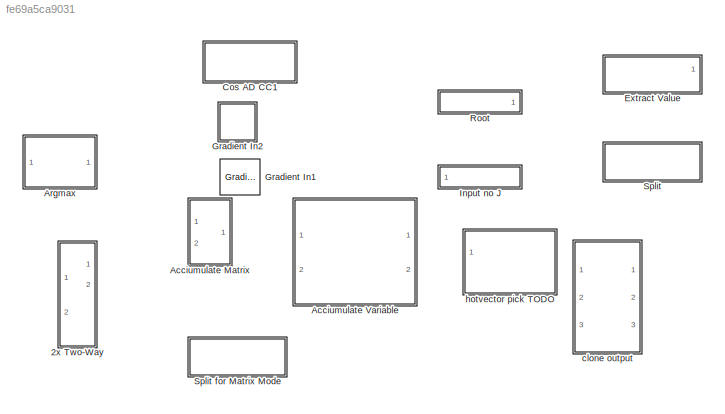
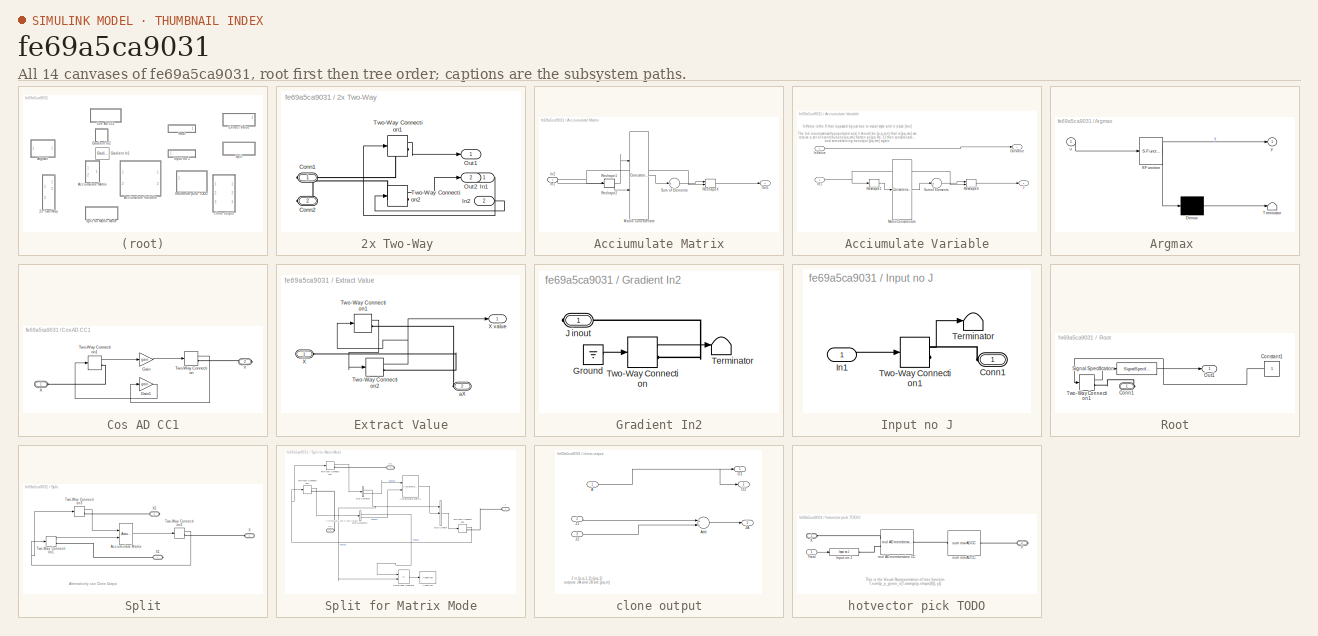
[diagram: thumbnail index - all 14 canvases of the model, root first then tree order]
MODEL slx_fe69a5ca9031
KIND library
CONFIG AbsTol = auto
CONFIG EnableMultiTasking = off
CONFIG FixedStep = auto
CONFIG MaxStep = auto
CONFIG MinStep = auto
CONFIG RelTol = 1e-3
CONFIG SampleTimeConstraint = Unconstrained
CONFIG Solver = VariableStepAuto
CONFIG SolverName = VariableStepAuto
CONFIG StartTime = 0.0
CONFIG StopTime = 10.0
BLOCK [SubSystem] 2x Two-Way 
  Ports = [2, 2, 0, 0, 0, 0, 2]
  RequestExecContextInheritance = off
  Variant = off
BLOCK [PMIOPort] 2x Two-Way /Conn1
  Port = 1
  Side = Right
BLOCK [PMIOPort] 2x Two-Way /Conn2
  Port = 2
  Side = Right
BLOCK [Inport] 2x Two-Way /In1
  IconDisplay = Port number
BLOCK [Inport] 2x Two-Way /In2
  IconDisplay = Port number
  Port = 2
BLOCK [Outport] 2x Two-Way /Out1
  IconDisplay = Port number
BLOCK [Outport] 2x Two-Way /Out2
  IconDisplay = Port number
  Port = 2
BLOCK [TwoWayConnection] 2x Two-Way /Two-Way Connection1
  Ports = [1, 1, 0, 0, 0, 0, 1]
BLOCK [TwoWayConnection] 2x Two-Way /Two-Way Connection2
  Ports = [1, 1, 0, 0, 0, 0, 1]
BLOCK [SubSystem] Acciumulate Matrix
  Ports = [2, 1]
  RequestExecContextInheritance = off
  Variant = off
BLOCK [Inport] Acciumulate Matrix/In1
  IconDisplay = Port number
BLOCK [Inport] Acciumulate Matrix/In2
  IconDisplay = Port number
  Port = 2
BLOCK [Concatenate] Acciumulate Matrix/Matrix Concatenate
  ConcatenateDimension = 2
  Mode = Multidimensional array
  Ports = [2, 1]
BLOCK [Outport] Acciumulate Matrix/Out1
  IconDisplay = Port number
BLOCK [Reshape] Acciumulate Matrix/Reshape1
  Ports = [1, 1]
BLOCK [Reshape] Acciumulate Matrix/Reshape2
  Ports = [1, 1]
BLOCK [Reshape] Acciumulate Matrix/ReshapeX
  OutputDimensionality = Derive from reference input port
  Ports = [2, 1]
BLOCK [Sum] Acciumulate Matrix/Sum of Elements
  CollapseDim = 2
  CollapseMode = Specified dimension
  InputSameDT = off
  Inputs = +
  OutDataTypeStr = Inherit: Inherit via internal rule
  Ports = [1, 1]
  SaturateOnIntegerOverflow = off
BLOCK [SubSystem] Acciumulate Variable
  Ports = [2, 2]
  RequestExecContextInheritance = off
  Variant = off
BLOCK [Inport] Acciumulate Variable/In1
  IconDisplay = Port number
  Port = 2
BLOCK [Inport] Acciumulate Variable/InValue
  IconDisplay = Port number
BLOCK [Outport] Acciumulate Variable/J
  IconDisplay = Port number
  Port = 2
BLOCK [Concatenate] Acciumulate Variable/Matrix Concatenate
  ConcatenateDimension = 2
  Mode = Multidimensional array
  NumInputs = 1
  Ports = [1, 1]
BLOCK [Outport] Acciumulate Variable/OutValue
  IconDisplay = Port number
BLOCK [Reshape] Acciumulate Variable/Reshape1
  Ports = [1, 1]
BLOCK [Reshape] Acciumulate Variable/ReshapeX
  OutputDimensionality = Derive from reference input port
  Ports = [2, 1]
BLOCK [Sum] Acciumulate Variable/Sum of Elements
  CollapseDim = 2
  CollapseMode = Specified dimension
  InputSameDT = off
  Inputs = +
  OutDataTypeStr = Inherit: Inherit via internal rule
  Ports = [1, 1]
  SaturateOnIntegerOverflow = off
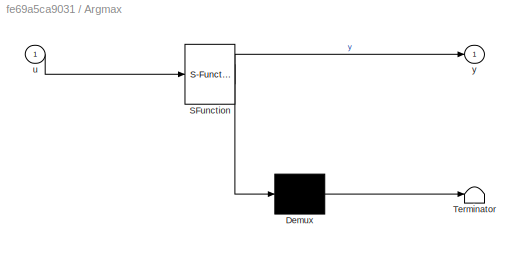
BLOCK [SubSystem] Argmax 
  ErrorFcn = Stateflow.Translate.translate
  PermitHierarchicalResolution = ExplicitOnly
  Ports = [1, 1]
  RequestExecContextInheritance = off
  SFBlockType = MATLAB Function
  TreatAsAtomicUnit = on
  Variant = off
BLOCK [Demux] Argmax / Demux 
  Outputs = 1
  Ports = [1, 1]
BLOCK [S-Function] Argmax / SFunction 
  EnableBusSupport = off
  FunctionName = sf_sfun
  Parameters = dim
  PortCounts = [1 2]
  Ports = [1, 2]
  SFcnIsStateOwnerBlock = off
  SFunctionDeploymentMode = off
  Tag = Stateflow S-Function ad_common 3
BLOCK [Terminator] Argmax / Terminator 
BLOCK [Inport] Argmax /u
  IconDisplay = Port number
BLOCK [Outport] Argmax /y
  IconDisplay = Port number
BLOCK [SubSystem] Cos AD CC1
  Ports = [0, 0, 0, 0, 0, 1, 1]
  RequestExecContextInheritance = off
  Variant = off
BLOCK [Gain] Cos AD CC1/Gain
  Gain = gain
  OutDataTypeStr = Inherit: Inherit via internal rule
  ParamDataTypeStr = Inherit: Inherit via internal rule
  SaturateOnIntegerOverflow = off
BLOCK [Gain] Cos AD CC1/Gain1
  Gain = gain
  OutDataTypeStr = Inherit: Inherit via internal rule
  ParamDataTypeStr = Inherit: Inherit via internal rule
  SaturateOnIntegerOverflow = off
BLOCK [TwoWayConnection] Cos AD CC1/Two-Way Connection
  Ports = [1, 1, 0, 0, 0, 0, 1]
BLOCK [TwoWayConnection] Cos AD CC1/Two-Way Connection1
  Ports = [1, 1, 0, 0, 0, 0, 1]
BLOCK [PMIOPort] Cos AD CC1/X
  Port = 1
  Side = Left
BLOCK [PMIOPort] Cos AD CC1/Y
  Port = 2
  Side = Right
BLOCK [SubSystem] Extract Value
  Ports = [0, 1, 0, 0, 0, 1, 1]
  RequestExecContextInheritance = off
  Variant = off
BLOCK [TwoWayConnection] Extract Value/Two-Way Connection1
  Ports = [1, 1, 0, 0, 0, 0, 1]
BLOCK [TwoWayConnection] Extract Value/Two-Way Connection2
  Ports = [1, 1, 0, 0, 0, 0, 1]
BLOCK [PMIOPort] Extract Value/X
  Port = 1
  Side = Left
BLOCK [Outport] Extract Value/X value
  IconDisplay = Port number
BLOCK [PMIOPort] Extract Value/aX
  Port = 2
  Side = Right
BLOCK [Reference] Gradient In1  REF=ad_common/Gradient In2  (lib defined in slx_fe69a5ca9031)
  Ports = [0, 0, 0, 0, 0, 0, 1]
  SourceBlock = ad_common/Gradient In2
BLOCK [SubSystem] Gradient In2
  Ports = [0, 0, 0, 0, 0, 0, 1]
  RequestExecContextInheritance = off
  ShowPortLabels = none
  Variant = off
BLOCK [Ground] Gradient In2/Ground
BLOCK [PMIOPort] Gradient In2/J inout
  Port = 1
  Side = Right
BLOCK [Terminator] Gradient In2/Terminator
BLOCK [TwoWayConnection] Gradient In2/Two-Way Connection
  Ports = [1, 1, 0, 0, 0, 0, 1]
BLOCK [SubSystem] Input no J
  Ports = [1, 0, 0, 0, 0, 0, 1]
  RequestExecContextInheritance = off
  Variant = off
BLOCK [PMIOPort] Input no J/Conn1
  Port = 1
  Side = Right
BLOCK [Inport] Input no J/In1
  IconDisplay = Port number
BLOCK [Terminator] Input no J/Terminator
BLOCK [TwoWayConnection] Input no J/Two-Way Connection1
  Ports = [1, 1, 0, 0, 0, 0, 1]
BLOCK [SubSystem] Root
  Ports = [0, 1, 0, 0, 0, 1]
  RequestExecContextInheritance = off
  Variant = off
BLOCK [PMIOPort] Root/Conn1
  Port = 1
  Side = Left
BLOCK [Constant] Root/Constant1
BLOCK [Outport] Root/Out1
  IconDisplay = Port number
BLOCK [SignalSpecification] Root/Signal Specification
  Dimensions = 1
  VarSizeSig = No
BLOCK [TwoWayConnection] Root/Two-Way Connection1
  Ports = [1, 1, 0, 0, 0, 0, 1]
BLOCK [SubSystem] Split
  Ports = [0, 0, 0, 0, 0, 1, 2]
  RequestExecContextInheritance = off
  Variant = off
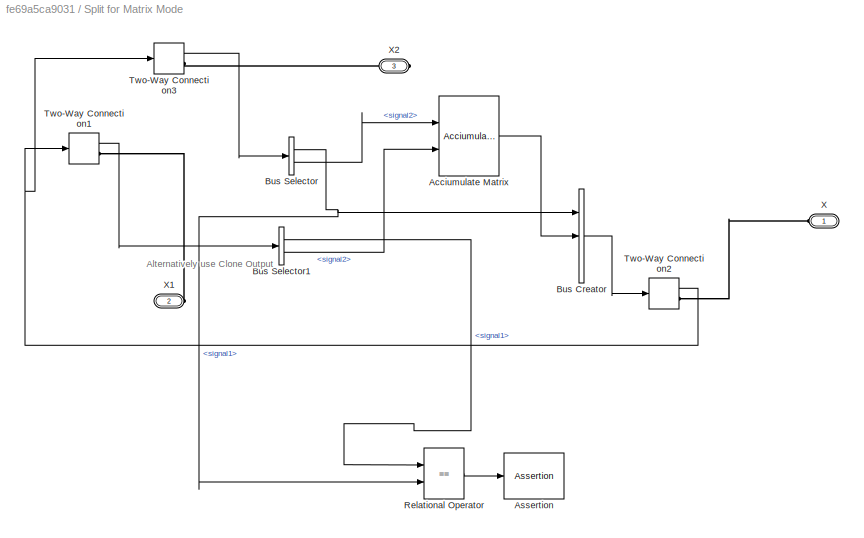
BLOCK [SubSystem] Split for Matrix Mode
  Ports = [0, 0, 0, 0, 0, 1, 2]
  RequestExecContextInheritance = off
  Variant = off
BLOCK [Reference] Split for Matrix Mode/Acciumulate Matrix  REF=autodiff/Common/Acciumulate Matrix  (lib defined in slx_73a817ef6e8b)
  Ports = [2, 1]
  SourceBlock = autodiff/Common/Acciumulate Matrix
  SourceProductName = AutoDiff
BLOCK [Assertion] Split for Matrix Mode/Assertion
BLOCK [BusCreator] Split for Matrix Mode/Bus Creator
  DisplayOption = bar
  InheritFromInputs = on
  Inputs = 3
  Ports = [3, 1]
BLOCK [BusSelector] Split for Matrix Mode/Bus Selector
  OutputAsBus = off
  OutputSignals = signal1,signal2
  Ports = [1, 2]
BLOCK [BusSelector] Split for Matrix Mode/Bus Selector1
  OutputAsBus = off
  OutputSignals = signal1,signal2
  Ports = [1, 2]
BLOCK [RelationalOperator] Split for Matrix Mode/Relational Operator
  InputSameDT = off
  Operator = ==
  OutDataTypeStr = boolean
  Ports = [2, 1]
  RndMeth = Simplest
BLOCK [TwoWayConnection] Split for Matrix Mode/Two-Way Connection1
  Ports = [1, 1, 0, 0, 0, 0, 1]
BLOCK [TwoWayConnection] Split for Matrix Mode/Two-Way Connection2
  Ports = [1, 1, 0, 0, 0, 0, 1]
BLOCK [TwoWayConnection] Split for Matrix Mode/Two-Way Connection3
  Ports = [1, 1, 0, 0, 0, 0, 1]
BLOCK [PMIOPort] Split for Matrix Mode/X
  Port = 1
  Side = Left
BLOCK [PMIOPort] Split for Matrix Mode/X1
  Port = 2
  Side = Right
BLOCK [PMIOPort] Split for Matrix Mode/X2
  Port = 3
  Side = Right
BLOCK [Reference] Split/Acciumulate Matrix  REF=autodiff/Common/Acciumulate Matrix  (lib defined in slx_73a817ef6e8b)
  Ports = [2, 1]
  SourceBlock = autodiff/Common/Acciumulate Matrix
  SourceProductName = AutoDiff
BLOCK [TwoWayConnection] Split/Two-Way Connection1
  Ports = [1, 1, 0, 0, 0, 0, 1]
BLOCK [TwoWayConnection] Split/Two-Way Connection2
  Ports = [1, 1, 0, 0, 0, 0, 1]
BLOCK [TwoWayConnection] Split/Two-Way Connection3
  Ports = [1, 1, 0, 0, 0, 0, 1]
BLOCK [PMIOPort] Split/X
  Port = 1
  Side = Left
BLOCK [PMIOPort] Split/X1
  Port = 2
  Side = Right
BLOCK [PMIOPort] Split/X2
  Port = 3
  Side = Right
BLOCK [SubSystem] clone output
  Ports = [3, 3]
  RequestExecContextInheritance = off
  Variant = off
BLOCK [Inport] clone output/A
  IconDisplay = Port number
BLOCK [Sum] clone output/Add
  InputSameDT = off
  OutDataTypeStr = Inherit: Inherit via internal rule
  Ports = [2, 1]
  SaturateOnIntegerOverflow = off
BLOCK [Inport] clone output/J1
  IconDisplay = Port number
  Port = 2
BLOCK [Inport] clone output/J2 
  IconDisplay = Port number
  Port = 3
BLOCK [Outport] clone output/JA
  IconDisplay = Port number
  Port = 3
BLOCK [Outport] clone output/O1
  IconDisplay = Port number
BLOCK [Outport] clone output/O2
  IconDisplay = Port number
  Port = 2
BLOCK [SubSystem] hotvector pick TODO
  Ports = [1, 0, 0, 0, 0, 1, 1]
  RequestExecContextInheritance = off
  Variant = off
BLOCK [Reference] hotvector pick TODO/Input no J  REF=autodiff/Input no J  (lib defined in slx_73a817ef6e8b)
  Ports = [1, 0, 0, 0, 0, 0, 1]
  SourceBlock = autodiff/Input no J
  SourceProductName = AutoDiff
BLOCK [PMIOPort] hotvector pick TODO/X
  Port = 1
  Side = Left
BLOCK [PMIOPort] hotvector pick TODO/Y
  Port = 2
  Side = Right
BLOCK [Inport] hotvector pick TODO/Yreal
  IconDisplay = Port number
BLOCK [Reference] hotvector pick TODO/mul AD memberwise CC  REF=autodiff/mul AD memberwise CC  (lib defined in slx_73a817ef6e8b)
  Ports = [0, 0, 0, 0, 0, 2, 1]
  SourceBlock = autodiff/mul AD memberwise CC
  SourceProductName = AutoDiff
  SourceType = SubSystem
BLOCK [Reference] hotvector pick TODO/sum row AD CC  REF=autodiff/sum row AD CC  (lib defined in slx_73a817ef6e8b)
  Ports = [0, 0, 0, 0, 0, 1, 1]
  SourceBlock = autodiff/sum row AD CC
  SourceProductName = AutoDiff
ANNOTATION Acciumulate Variable: InValue is the X that is passed by just due to visual style and it is size [m,n] The In# is automatically populated and it should be [p,q,m,n] that is [pq,mn] we receive a set of k contributions [pq,mn] flatten as [pq mn, 1] then concatenate to [pq mn,k] and sum obtaining as output [pq,mn] again
ANNOTATION Split: Alternatively use Clone Output
ANNOTATION Split for Matrix Mode: Alternatively use Clone Output
ANNOTATION clone output: J is [p,q,1,1]=[pq,1] outputs JA and JB are [pq,m]
ANNOTATION hotvector pick TODO: This is the Visual Representation of loss function T . sum(p_y_given_x[T . arange(y . shape[ 0 ]), y])
LINE 2x Two-Way /In1:1 -> 2x Two-Way /Two-Way Connection1:1
LINE 2x Two-Way /In2:1 -> 2x Two-Way /Two-Way Connection2:1
LINE 2x Two-Way /Two-Way Connection1:1 -> 2x Two-Way /Out1:1
LINE 2x Two-Way /Two-Way Connection2:1 -> 2x Two-Way /Out2:1
NET Acciumulate Matrix/In1:1 -> Acciumulate Matrix/Reshape1:1, Acciumulate Matrix/ReshapeX:2
LINE Acciumulate Matrix/In2:1 -> Acciumulate Matrix/Reshape2:1
LINE Acciumulate Matrix/Matrix Concatenate:1 -> Acciumulate Matrix/Sum of Elements:1
LINE Acciumulate Matrix/Reshape1:1 -> Acciumulate Matrix/Matrix Concatenate:1
LINE Acciumulate Matrix/Reshape2:1 -> Acciumulate Matrix/Matrix Concatenate:2
LINE Acciumulate Matrix/ReshapeX:1 -> Acciumulate Matrix/Out1:1
LINE Acciumulate Matrix/Sum of Elements:1 -> Acciumulate Matrix/ReshapeX:1
NET Acciumulate Variable/In1:1 -> Acciumulate Variable/Reshape1:1, Acciumulate Variable/ReshapeX:2
LINE Acciumulate Variable/InValue:1 -> Acciumulate Variable/OutValue:1
LINE Acciumulate Variable/Matrix Concatenate:1 -> Acciumulate Variable/Sum of Elements:1
LINE Acciumulate Variable/Reshape1:1 -> Acciumulate Variable/Matrix Concatenate:1
LINE Acciumulate Variable/ReshapeX:1 -> Acciumulate Variable/J:1
LINE Acciumulate Variable/Sum of Elements:1 -> Acciumulate Variable/ReshapeX:1
LINE Cos AD CC1/Gain1:1 -> Cos AD CC1/Two-Way Connection1:1
LINE Cos AD CC1/Gain:1 -> Cos AD CC1/Two-Way Connection:1
LINE Cos AD CC1/Two-Way Connection1:1 -> Cos AD CC1/Gain:1
LINE Cos AD CC1/Two-Way Connection:1 -> Cos AD CC1/Gain1:1
LINE Extract Value/Two-Way Connection1:1 -> Extract Value/Two-Way Connection2:1
NET Extract Value/Two-Way Connection2:1 -> Extract Value/Two-Way Connection1:1, Extract Value/X value:1
LINE Gradient In2/Ground:1 -> Gradient In2/Two-Way Connection:1
LINE Gradient In2/Two-Way Connection:1 -> Gradient In2/Terminator:1
LINE Input no J/In1:1 -> Input no J/Two-Way Connection1:1
LINE Input no J/Two-Way Connection1:1 -> Input no J/Terminator:1
LINE Root/Constant1:1 -> Root/Two-Way Connection1:1
LINE Root/Signal Specification:1 -> Root/Out1:1
LINE Root/Two-Way Connection1:1 -> Root/Signal Specification:1
LINE Split for Matrix Mode/Acciumulate Matrix:1 -> Split for Matrix Mode/Bus Creator:2
LINE Split for Matrix Mode/Bus Creator:1 -> Split for Matrix Mode/Two-Way Connection2:1
LINE Split for Matrix Mode/Bus Selector1:1 -> Split for Matrix Mode/Relational Operator:1
LINE Split for Matrix Mode/Bus Selector1:2 -> Split for Matrix Mode/Acciumulate Matrix:2
NET Split for Matrix Mode/Bus Selector:1 -> Split for Matrix Mode/Bus Creator:1, Split for Matrix Mode/Relational Operator:2
LINE Split for Matrix Mode/Bus Selector:2 -> Split for Matrix Mode/Acciumulate Matrix:1
LINE Split for Matrix Mode/Relational Operator:1 -> Split for Matrix Mode/Assertion:1
LINE Split for Matrix Mode/Two-Way Connection1:1 -> Split for Matrix Mode/Bus Selector1:1
NET Split for Matrix Mode/Two-Way Connection2:1 -> Split for Matrix Mode/Two-Way Connection1:1, Split for Matrix Mode/Two-Way Connection3:1
LINE Split for Matrix Mode/Two-Way Connection3:1 -> Split for Matrix Mode/Bus Selector:1
LINE Split/Acciumulate Matrix:1 -> Split/Two-Way Connection2:1
LINE Split/Two-Way Connection1:1 -> Split/Acciumulate Matrix:2
NET Split/Two-Way Connection2:1 -> Split/Two-Way Connection1:1, Split/Two-Way Connection3:1
LINE Split/Two-Way Connection3:1 -> Split/Acciumulate Matrix:1
NET clone output/A:1 -> clone output/O1:1, clone output/O2:1
LINE clone output/Add:1 -> clone output/JA:1
LINE clone output/J1:1 -> clone output/Add:1
LINE clone output/J2 :1 -> clone output/Add:2
LINE hotvector pick TODO/Yreal:1 -> hotvector pick TODO/Input no J:1
PLINE 2x Two-Way /Conn1:RConn1 -- 2x Two-Way /Two-Way Connection1:RConn1
PLINE 2x Two-Way /Conn2:RConn1 -- 2x Two-Way /Two-Way Connection2:RConn1
PLINE Cos AD CC1/Two-Way Connection1:RConn1 -- Cos AD CC1/X:RConn1
PLINE Cos AD CC1/Two-Way Connection:RConn1 -- Cos AD CC1/Y:RConn1
PLINE Extract Value/Two-Way Connection1:RConn1 -- Extract Value/aX:RConn1
PLINE Extract Value/Two-Way Connection2:RConn1 -- Extract Value/X:RConn1
PLINE Gradient In2/J inout:RConn1 -- Gradient In2/Two-Way Connection:RConn1
PLINE Input no J/Conn1:RConn1 -- Input no J/Two-Way Connection1:RConn1
PLINE Root/Conn1:RConn1 -- Root/Two-Way Connection1:RConn1
PLINE Split for Matrix Mode/Two-Way Connection1:RConn1 -- Split for Matrix Mode/X1:RConn1
PLINE Split for Matrix Mode/Two-Way Connection2:RConn1 -- Split for Matrix Mode/X:RConn1
PLINE Split for Matrix Mode/Two-Way Connection3:RConn1 -- Split for Matrix Mode/X2:RConn1
PLINE Split/Two-Way Connection1:RConn1 -- Split/X1:RConn1
PLINE Split/Two-Way Connection2:RConn1 -- Split/X:RConn1
PLINE Split/Two-Way Connection3:RConn1 -- Split/X2:RConn1
PLINE hotvector pick TODO/Input no J:RConn1 -- hotvector pick TODO/mul AD memberwise CC:LConn2
PLINE hotvector pick TODO/X:RConn1 -- hotvector pick TODO/mul AD memberwise CC:LConn1
PLINE hotvector pick TODO/Y:RConn1 -- hotvector pick TODO/sum row AD CC:RConn1
PLINE hotvector pick TODO/mul AD memberwise CC:RConn1 -- hotvector pick TODO/sum row AD CC:LConn1
note: NET lines group one-source signal fan-out (src -> all destinations, sorted); 1:1 wires keep LINE
CHART Argmax  states=1 transitions=1
  STATE_LABEL 'eML_blk_kernel()'
  STATE_LABEL 'SCRIPT:\nfunction y = fcn(u, dim)\ny = 0;\n[~,y] = max(u,[],dim);\n'
